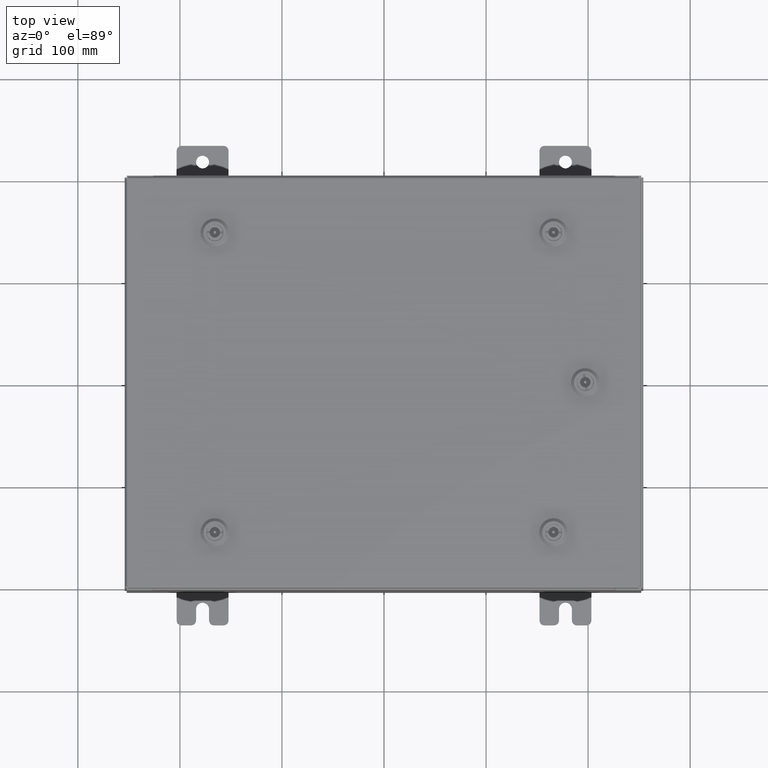
[diagram: clean part render]
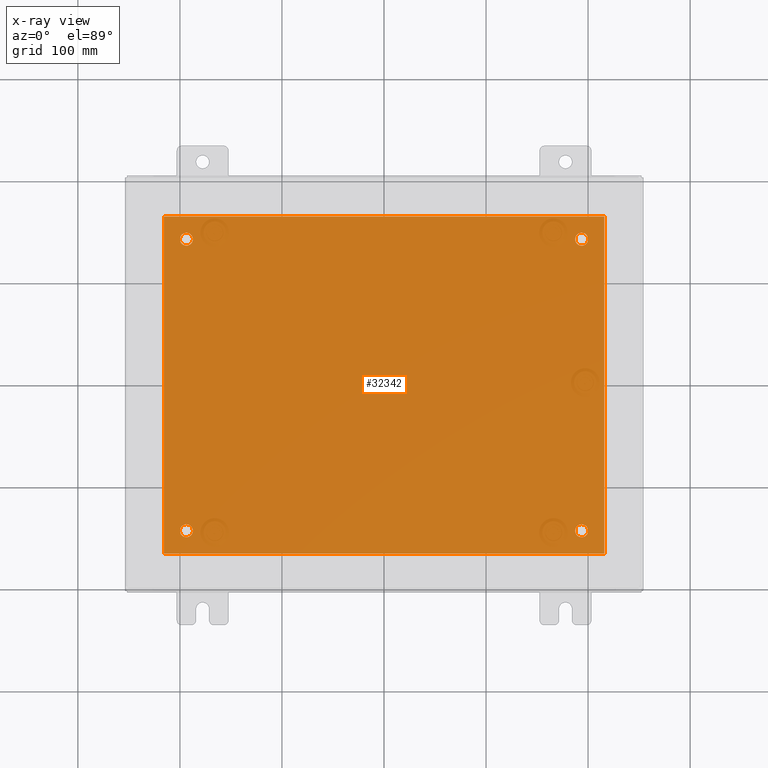
[diagram: x-ray — body ghosted, one internal face saturated and labeled with its STEP entity id]
A machine part, top view, then the same camera in x-ray: the body is ghosted and one INTERNAL B-rep face — a face not visible from any outside direction — is saturated and labeled: STEP entity #32342.
In plain terms, the highlighted planar face has unit normal (0, 0, -1).
Its self-contained STEP definition (entity closure, byte-faithful):
#290 = DIRECTION ( 'NONE',  ( -0.0000000000000000000, -1.000000000000000000, -0.0000000000000000000 ) ) ;
#489 = DIRECTION ( 'NONE',  ( -0.0000000000000000000, -0.0000000000000000000, 1.000000000000000000 ) ) ;
#789 = CIRCLE ( 'NONE', #59032, 0.2499999999999987000 ) ;
#1929 = ORIENTED_EDGE ( 'NONE', *, *, #8223, .T. ) ;
#3665 = ORIENTED_EDGE ( 'NONE', *, *, #12334, .T. ) ;
#4126 = VERTEX_POINT ( 'NONE', #44774 ) ;
#6069 = VERTEX_POINT ( 'NONE', #41539 ) ;
#6851 = AXIS2_PLACEMENT_3D ( 'NONE', #36321, #7551, #41178 ) ;
#7284 = EDGE_CURVE ( 'NONE', #27022, #13527, #35713, .T. ) ;
#7439 = CIRCLE ( 'NONE', #51004, 0.2499999999999987000 ) ;
#7551 = DIRECTION ( 'NONE',  ( -0.0000000000000000000, -0.0000000000000000000, 1.000000000000000000 ) ) ;
#8223 = EDGE_CURVE ( 'NONE', #42990, #4126, #37178, .T. ) ;
#8398 = CARTESIAN_POINT ( 'NONE',  ( -7.874999999999999100, 5.625000000000000000, -0.1040000000000000400 ) ) ;
#9062 = VECTOR ( 'NONE', #10733, 39.37007874015748100 ) ;
#9331 = AXIS2_PLACEMENT_3D ( 'NONE', #29325, #489, #34127 ) ;
#9422 = FACE_BOUND ( 'NONE', #61064, .T. ) ;
#9795 = CARTESIAN_POINT ( 'NONE',  ( 7.874999999999998200, -5.625000000000000000, -0.1040000000000000400 ) ) ;
#9805 = VERTEX_POINT ( 'NONE', #41407 ) ;
#10525 = DIRECTION ( 'NONE',  ( -0.0000000000000000000, -0.0000000000000000000, 1.000000000000000000 ) ) ;
#10733 = DIRECTION ( 'NONE',  ( 0.0000000000000000000, 1.000000000000000000, 0.0000000000000000000 ) ) ;
#11218 = ORIENTED_EDGE ( 'NONE', *, *, #12317, .F. ) ;
#11715 = ORIENTED_EDGE ( 'NONE', *, *, #36214, .F. ) ;
#12177 = CARTESIAN_POINT ( 'NONE',  ( 8.500000000000003600, 6.500000000000000000, -0.1040000000000000400 ) ) ;
#12317 = EDGE_CURVE ( 'NONE', #17941, #45663, #48198, .T. ) ;
#12334 = EDGE_CURVE ( 'NONE', #48557, #18399, #60912, .T. ) ;
#12480 = FACE_BOUND ( 'NONE', #60151, .T. ) ;
#13513 = EDGE_LOOP ( 'NONE', ( #14469, #22944, #11218, #11715 ) ) ;
#13527 = VERTEX_POINT ( 'NONE', #8398 ) ;
#14469 = ORIENTED_EDGE ( 'NONE', *, *, #17700, .F. ) ;
#14712 = VERTEX_POINT ( 'NONE', #12177 ) ;
#15868 = CARTESIAN_POINT ( 'NONE',  ( -7.625000000000000000, -5.625000000000000000, -0.1040000000000000400 ) ) ;
#17228 = CARTESIAN_POINT ( 'NONE',  ( -7.625000000000000000, 5.625000000000000000, -0.1040000000000000400 ) ) ;
#17700 = EDGE_CURVE ( 'NONE', #23799, #14712, #23370, .T. ) ;
#17733 = CARTESIAN_POINT ( 'NONE',  ( 7.375000000000000900, -5.625000000000000000, -0.1040000000000000400 ) ) ;
#17941 = VERTEX_POINT ( 'NONE', #35919 ) ;
#18161 = CIRCLE ( 'NONE', #23730, 0.2499999999999998100 ) ;
#18399 = VERTEX_POINT ( 'NONE', #9795 ) ;
#18548 = ORIENTED_EDGE ( 'NONE', *, *, #19761, .T. ) ;
#19618 = ORIENTED_EDGE ( 'NONE', *, *, #7284, .T. ) ;
#19761 = EDGE_CURVE ( 'NONE', #6069, #9805, #7439, .T. ) ;
#20690 = DIRECTION ( 'NONE',  ( -1.000000000000000000, 0.0000000000000000000, 0.0000000000000000000 ) ) ;
#22050 = DIRECTION ( 'NONE',  ( -1.000000000000000000, 0.0000000000000000000, 0.0000000000000000000 ) ) ;
#22242 = FACE_BOUND ( 'NONE', #41955, .T. ) ;
#22244 = CARTESIAN_POINT ( 'NONE',  ( 7.625000000000000000, 5.625000000000000000, -0.1040000000000000400 ) ) ;
#22555 = CARTESIAN_POINT ( 'NONE',  ( -8.499999999999996400, -6.500000000000000000, -0.1040000000000000400 ) ) ;
#22690 = VECTOR ( 'NONE', #290, 39.37007874015748100 ) ;
#22944 = ORIENTED_EDGE ( 'NONE', *, *, #48000, .F. ) ;
#22956 = CARTESIAN_POINT ( 'NONE',  ( 7.625000000000000000, 5.625000000000000000, -0.1040000000000000400 ) ) ;
#23370 = LINE ( 'NONE', #49153, #9062 ) ;
#23507 = ORIENTED_EDGE ( 'NONE', *, *, #48118, .T. ) ;
#23730 = AXIS2_PLACEMENT_3D ( 'NONE', #25723, #59200, #30562 ) ;
#23799 = VERTEX_POINT ( 'NONE', #33072 ) ;
#25723 = CARTESIAN_POINT ( 'NONE',  ( -7.625000000000000000, 5.625000000000000000, -0.1040000000000000400 ) ) ;
#27022 = VERTEX_POINT ( 'NONE', #45880 ) ;
#27084 = DIRECTION ( 'NONE',  ( -1.000000000000000000, 0.0000000000000000000, 0.0000000000000000000 ) ) ;
#27394 = VECTOR ( 'NONE', #53348, 39.37007874015748100 ) ;
#27801 = DIRECTION ( 'NONE',  ( -1.000000000000000000, 0.0000000000000000000, 0.0000000000000000000 ) ) ;
#28348 = VECTOR ( 'NONE', #33330, 39.37007874015748100 ) ;
#29325 = CARTESIAN_POINT ( 'NONE',  ( 7.625000000000000000, -5.625000000000000000, -0.1040000000000000400 ) ) ;
#30562 = DIRECTION ( 'NONE',  ( -1.000000000000000000, 0.0000000000000000000, 0.0000000000000000000 ) ) ;
#31557 = CIRCLE ( 'NONE', #48171, 0.2499999999999998100 ) ;
#31701 = ORIENTED_EDGE ( 'NONE', *, *, #55472, .T. ) ;
#32342 = ADVANCED_FACE ( 'NONE', ( #12480, #22242, #34975, #9422, #46297 ), #43600, .T. ) ;
#32537 = CARTESIAN_POINT ( 'NONE',  ( -7.375000000000000000, -5.625000000000000000, -0.1040000000000000400 ) ) ;
#32766 = AXIS2_PLACEMENT_3D ( 'NONE', #48404, #38745, #53198 ) ;
#32913 = AXIS2_PLACEMENT_3D ( 'NONE', #17228, #50774, #22050 ) ;
#33072 = CARTESIAN_POINT ( 'NONE',  ( 8.500000000000003600, -6.500000000000000000, -0.1040000000000000400 ) ) ;
#33330 = DIRECTION ( 'NONE',  ( 1.000000000000000000, 0.0000000000000000000, 0.0000000000000000000 ) ) ;
#33930 = CARTESIAN_POINT ( 'NONE',  ( -8.499999999999996400, -6.500000000000000000, -0.1040000000000000400 ) ) ;
#34127 = DIRECTION ( 'NONE',  ( -1.000000000000000000, 0.0000000000000000000, 0.0000000000000000000 ) ) ;
#34975 = FACE_BOUND ( 'NONE', #38407, .T. ) ;
#35631 = ORIENTED_EDGE ( 'NONE', *, *, #55104, .T. ) ;
#35713 = CIRCLE ( 'NONE', #32913, 0.2499999999999998100 ) ;
#35919 = CARTESIAN_POINT ( 'NONE',  ( -8.499999999999996400, 6.500000000000000000, -0.1040000000000000400 ) ) ;
#36214 = EDGE_CURVE ( 'NONE', #14712, #17941, #54358, .T. ) ;
#36321 = CARTESIAN_POINT ( 'NONE',  ( 7.625000000000000000, -5.625000000000000000, -0.1040000000000000400 ) ) ;
#37178 = CIRCLE ( 'NONE', #55000, 0.2499999999999998100 ) ;
#38407 = EDGE_LOOP ( 'NONE', ( #31701, #18548 ) ) ;
#38745 = DIRECTION ( 'NONE',  ( 0.0000000000000000000, 0.0000000000000000000, -1.000000000000000000 ) ) ;
#39306 = CARTESIAN_POINT ( 'NONE',  ( -7.625000000000000000, -5.625000000000000000, -0.1040000000000000400 ) ) ;
#41178 = DIRECTION ( 'NONE',  ( -1.000000000000000000, 0.0000000000000000000, 0.0000000000000000000 ) ) ;
#41407 = CARTESIAN_POINT ( 'NONE',  ( 7.874999999999998200, 5.625000000000000000, -0.1040000000000000400 ) ) ;
#41539 = CARTESIAN_POINT ( 'NONE',  ( 7.375000000000000900, 5.625000000000000000, -0.1040000000000000400 ) ) ;
#41955 = EDGE_LOOP ( 'NONE', ( #23507, #3665 ) ) ;
#42633 = LINE ( 'NONE', #57197, #28348 ) ;
#42990 = VERTEX_POINT ( 'NONE', #32537 ) ;
#43375 = EDGE_CURVE ( 'NONE', #4126, #42990, #31557, .T. ) ;
#43600 = PLANE ( 'NONE',  #32766 ) ;
#43754 = CARTESIAN_POINT ( 'NONE',  ( -8.499999999999996400, 6.500000000000000000, -0.1040000000000000400 ) ) ;
#44156 = DIRECTION ( 'NONE',  ( -1.000000000000000000, 0.0000000000000000000, 0.0000000000000000000 ) ) ;
#44774 = CARTESIAN_POINT ( 'NONE',  ( -7.874999999999999100, -5.625000000000000000, -0.1040000000000000400 ) ) ;
#45663 = VERTEX_POINT ( 'NONE', #22555 ) ;
#45880 = CARTESIAN_POINT ( 'NONE',  ( -7.375000000000000000, 5.625000000000000000, -0.1040000000000000400 ) ) ;
#46297 = FACE_OUTER_BOUND ( 'NONE', #13513, .T. ) ;
#48000 = EDGE_CURVE ( 'NONE', #45663, #23799, #42633, .T. ) ;
#48118 = EDGE_CURVE ( 'NONE', #18399, #48557, #50846, .T. ) ;
#48171 = AXIS2_PLACEMENT_3D ( 'NONE', #15868, #49439, #20690 ) ;
#48198 = LINE ( 'NONE', #33930, #22690 ) ;
#48404 = CARTESIAN_POINT ( 'NONE',  ( 0.0000000000000000000, 0.0000000000000000000, -0.1040000000000000400 ) ) ;
#48557 = VERTEX_POINT ( 'NONE', #17733 ) ;
#49153 = CARTESIAN_POINT ( 'NONE',  ( 8.500000000000003600, -6.500000000000000000, -0.1040000000000000400 ) ) ;
#49439 = DIRECTION ( 'NONE',  ( -0.0000000000000000000, -0.0000000000000000000, 1.000000000000000000 ) ) ;
#50774 = DIRECTION ( 'NONE',  ( -0.0000000000000000000, -0.0000000000000000000, 1.000000000000000000 ) ) ;
#50846 = CIRCLE ( 'NONE', #6851, 0.2499999999999987000 ) ;
#51004 = AXIS2_PLACEMENT_3D ( 'NONE', #22244, #55790, #27084 ) ;
#53198 = DIRECTION ( 'NONE',  ( -1.000000000000000000, 0.0000000000000000000, -0.0000000000000000000 ) ) ;
#53348 = DIRECTION ( 'NONE',  ( -1.000000000000000000, -0.0000000000000000000, -0.0000000000000000000 ) ) ;
#54358 = LINE ( 'NONE', #43754, #27394 ) ;
#54785 = ORIENTED_EDGE ( 'NONE', *, *, #43375, .T. ) ;
#55000 = AXIS2_PLACEMENT_3D ( 'NONE', #39306, #10525, #44156 ) ;
#55104 = EDGE_CURVE ( 'NONE', #13527, #27022, #18161, .T. ) ;
#55472 = EDGE_CURVE ( 'NONE', #9805, #6069, #789, .T. ) ;
#55790 = DIRECTION ( 'NONE',  ( -0.0000000000000000000, -0.0000000000000000000, 1.000000000000000000 ) ) ;
#56494 = DIRECTION ( 'NONE',  ( -0.0000000000000000000, -0.0000000000000000000, 1.000000000000000000 ) ) ;
#57197 = CARTESIAN_POINT ( 'NONE',  ( -8.499999999999996400, -6.500000000000000000, -0.1040000000000000400 ) ) ;
#59032 = AXIS2_PLACEMENT_3D ( 'NONE', #22956, #56494, #27801 ) ;
#59200 = DIRECTION ( 'NONE',  ( -0.0000000000000000000, -0.0000000000000000000, 1.000000000000000000 ) ) ;
#60151 = EDGE_LOOP ( 'NONE', ( #1929, #54785 ) ) ;
#60912 = CIRCLE ( 'NONE', #9331, 0.2499999999999987000 ) ;
#61064 = EDGE_LOOP ( 'NONE', ( #19618, #35631 ) ) ;